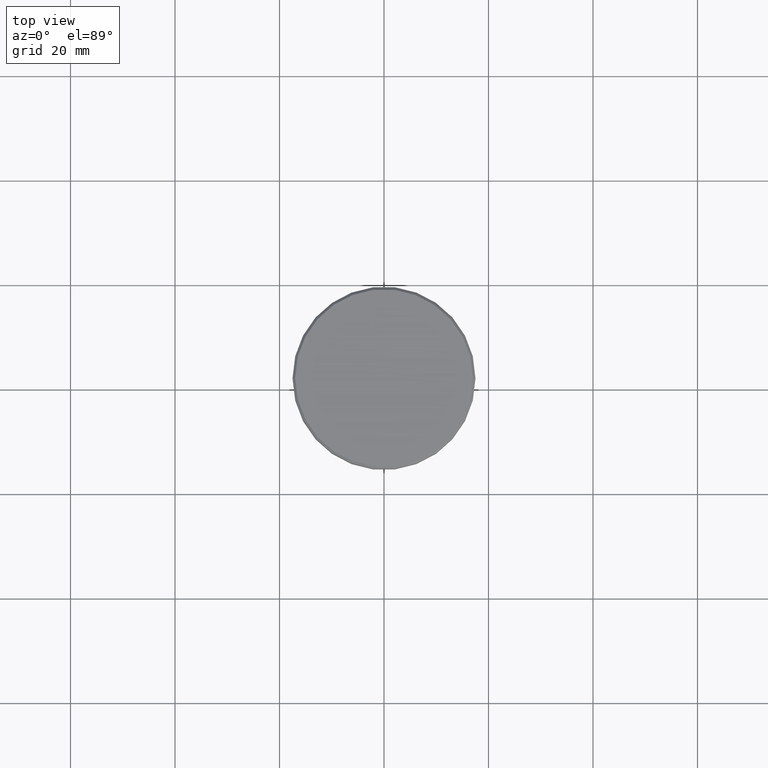
[diagram: clean part render]
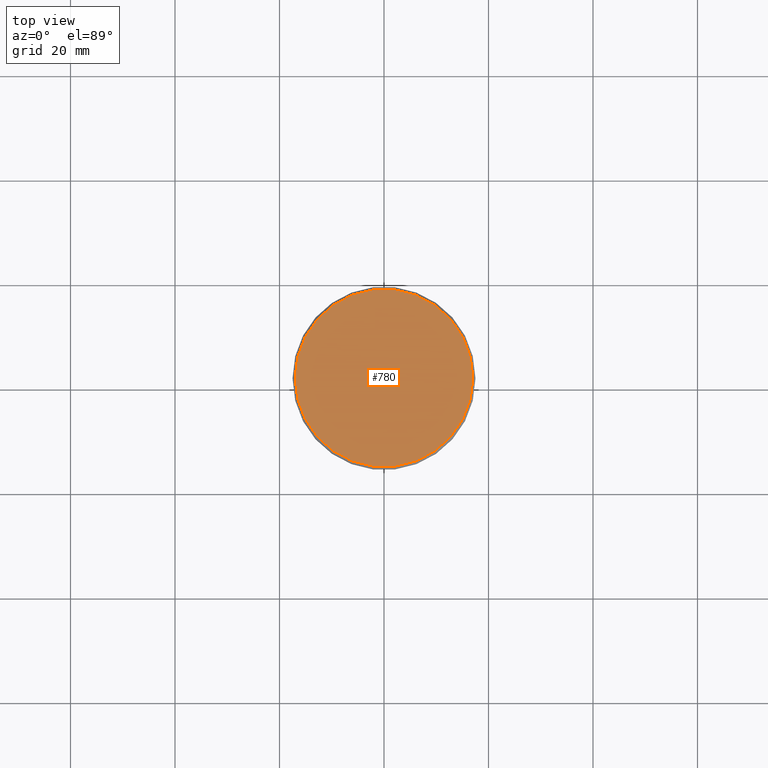
[diagram: same view with one face highlighted and labeled with its STEP entity id]
A machine part, top view. The second image highlights one B-rep face of the part: STEP entity #780.
In plain terms, the highlighted planar face has unit normal (0, -0, 1).
Its self-contained STEP definition (entity closure, byte-faithful):
#91 = DIRECTION ( 'NONE',  ( 1.000000000000000000, 0.000000000000000000, 0.000000000000000000 ) ) ;
#93 = VERTEX_POINT ( 'NONE', #1111 ) ;
#97 = EDGE_LOOP ( 'NONE', ( #242, #835 ) ) ;
#166 = CARTESIAN_POINT ( 'NONE',  ( 0.000000000000000000, 0.000000000000000000, 0.000000000000000000 ) ) ;
#242 = ORIENTED_EDGE ( 'NONE', *, *, #401, .T. ) ;
#401 = EDGE_CURVE ( 'NONE', #93, #1145, #843, .T. ) ;
#433 = CARTESIAN_POINT ( 'NONE',  ( 17.00000000000001421, 2.112515728529185250E-15, 0.000000000000000000 ) ) ;
#529 = DIRECTION ( 'NONE',  ( 1.000000000000000000, 0.000000000000000000, 0.000000000000000000 ) ) ;
#591 = AXIS2_PLACEMENT_3D ( 'NONE', #680, #595, #1135 ) ;
#595 = DIRECTION ( 'NONE',  ( -0.000000000000000000, -0.000000000000000000, 1.000000000000000000 ) ) ;
#619 = AXIS2_PLACEMENT_3D ( 'NONE', #166, #791, #529 ) ;
#679 = EDGE_CURVE ( 'NONE', #1145, #93, #709, .T. ) ;
#680 = CARTESIAN_POINT ( 'NONE',  ( 0.000000000000000000, 0.000000000000000000, 0.000000000000000000 ) ) ;
#689 = AXIS2_PLACEMENT_3D ( 'NONE', #1114, #955, #91 ) ;
#709 = CIRCLE ( 'NONE', #591, 17.00000000000001421 ) ;
#780 = ADVANCED_FACE ( 'NONE', ( #865 ), #967, .T. ) ;
#791 = DIRECTION ( 'NONE',  ( -0.000000000000000000, -0.000000000000000000, 1.000000000000000000 ) ) ;
#835 = ORIENTED_EDGE ( 'NONE', *, *, #679, .T. ) ;
#843 = CIRCLE ( 'NONE', #619, 17.00000000000001421 ) ;
#865 = FACE_OUTER_BOUND ( 'NONE', #97, .T. ) ;
#955 = DIRECTION ( 'NONE',  ( 0.000000000000000000, -0.000000000000000000, 1.000000000000000000 ) ) ;
#967 = PLANE ( 'NONE',  #689 ) ;
#1111 = CARTESIAN_POINT ( 'NONE',  ( -17.00000000000001421, 0.000000000000000000, 0.000000000000000000 ) ) ;
#1114 = CARTESIAN_POINT ( 'NONE',  ( 0.000000000000000000, 0.000000000000000000, 0.000000000000000000 ) ) ;
#1135 = DIRECTION ( 'NONE',  ( 1.000000000000000000, 0.000000000000000000, 0.000000000000000000 ) ) ;
#1145 = VERTEX_POINT ( 'NONE', #433 ) ;